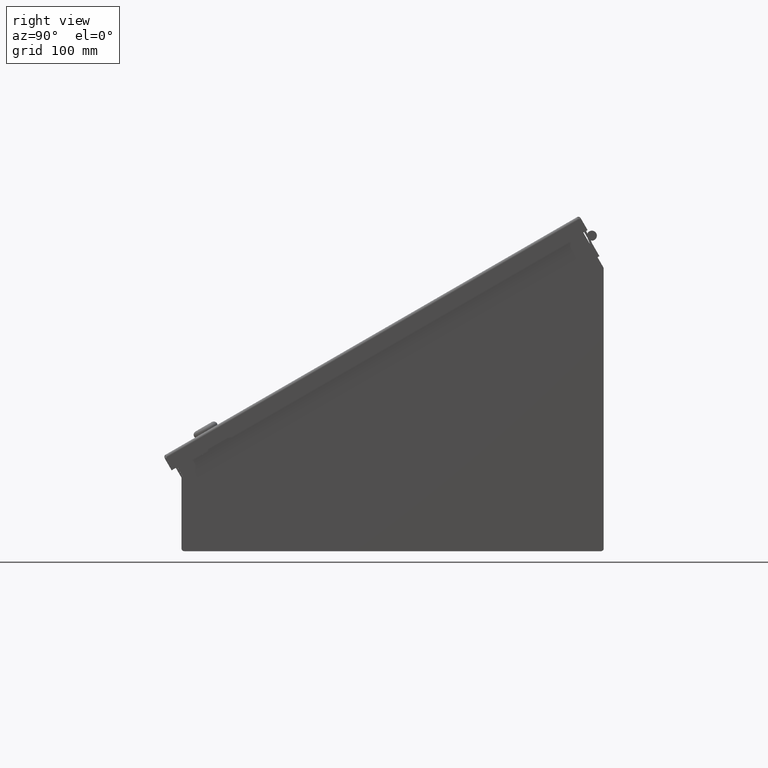
[diagram: clean part render]
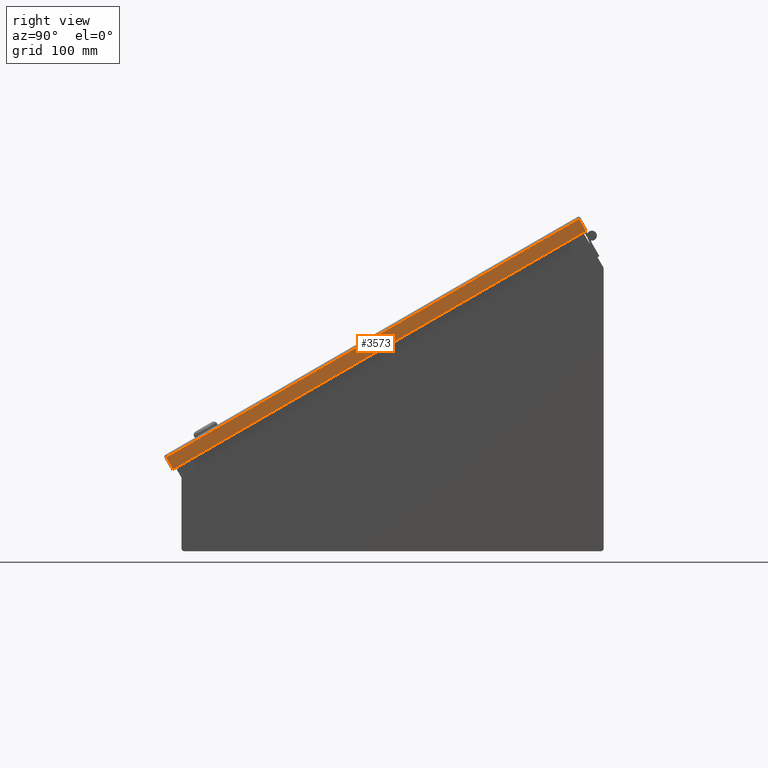
[diagram: same view with one face highlighted and labeled with its STEP entity id]
A machine part, right view. The second image highlights one B-rep face of the part: STEP entity #3573.
In plain terms, the highlighted planar face has unit normal (1, 0, -0).
Its self-contained STEP definition (entity closure, byte-faithful):
#3573 = ADVANCED_FACE( '', ( #8088 ), #8089, .T. );
#8088 = FACE_OUTER_BOUND( '', #22595, .T. );
#8089 = PLANE( '', #22596 );
#22595 = EDGE_LOOP( '', ( #52238, #52239, #52240, #52241 ) );
#22596 = AXIS2_PLACEMENT_3D( '', #52242, #52243, #52244 );
#52238 = ORIENTED_EDGE( '', *, *, #67093, .F. );
#52239 = ORIENTED_EDGE( '', *, *, #66580, .F. );
#52240 = ORIENTED_EDGE( '', *, *, #66589, .T. );
#52241 = ORIENTED_EDGE( '', *, *, #66873, .T. );
#52242 = CARTESIAN_POINT( '', ( 207.187800000000, -1439.32910000000, 1.52400000000000 ) );
#52243 = DIRECTION( '', ( 1.00000000000000, 0.000000000000000, 8.03375901225579E-015 ) );
#52244 = DIRECTION( '', ( 8.03375901225579E-015, 0.000000000000000, -1.00000000000000 ) );
#66580 = EDGE_CURVE( '', #73789, #73784, #73791, .T. );
#66589 = EDGE_CURVE( '', #73789, #73803, #73805, .T. );
#66873 = EDGE_CURVE( '', #73803, #74270, #74272, .T. );
#67093 = EDGE_CURVE( '', #73784, #74270, #74612, .T. );
#73784 = VERTEX_POINT( '', #88669 );
#73789 = VERTEX_POINT( '', #88684 );
#73791 = LINE( '', #88695, #88696 );
#73803 = VERTEX_POINT( '', #88713 );
#73805 = LINE( '', #88716, #88717 );
#74270 = VERTEX_POINT( '', #89806 );
#74272 = LINE( '', #89809, #89810 );
#74612 = LINE( '', #90835, #90836 );
#88669 = CARTESIAN_POINT( '', ( 207.187800000000, 205.927671572876, -0.812800000000101 ) );
#88684 = CARTESIAN_POINT( '', ( 207.187800000000, -205.927671572876, -0.812800000000000 ) );
#88695 = CARTESIAN_POINT( '', ( 207.187800000000, -1439.32910000000, -0.812799999999981 ) );
#88696 = VECTOR( '', #104850, 1000.00000000000 );
#88713 = CARTESIAN_POINT( '', ( 207.187800000000, -205.927671572876, -12.7508000000000 ) );
#88716 = CARTESIAN_POINT( '', ( 207.187800000000, -205.927671572876, -0.812799999999981 ) );
#88717 = VECTOR( '', #104856, 1000.00000000000 );
#89806 = CARTESIAN_POINT( '', ( 207.187800000000, 205.927671572876, -12.7508000000000 ) );
#89809 = CARTESIAN_POINT( '', ( 207.187800000000, -1439.32910000000, -12.7508000000000 ) );
#89810 = VECTOR( '', #105015, 1000.00000000000 );
#90835 = CARTESIAN_POINT( '', ( 207.187800000000, 205.927671572876, -0.812799999999981 ) );
#90836 = VECTOR( '', #105133, 1000.00000000000 );
#104850 = DIRECTION( '', ( 0.000000000000000, 1.00000000000000, 0.000000000000000 ) );
#104856 = DIRECTION( '', ( 0.000000000000000, 0.000000000000000, -1.00000000000000 ) );
#105015 = DIRECTION( '', ( 0.000000000000000, 1.00000000000000, 0.000000000000000 ) );
#105133 = DIRECTION( '', ( 0.000000000000000, 0.000000000000000, -1.00000000000000 ) );